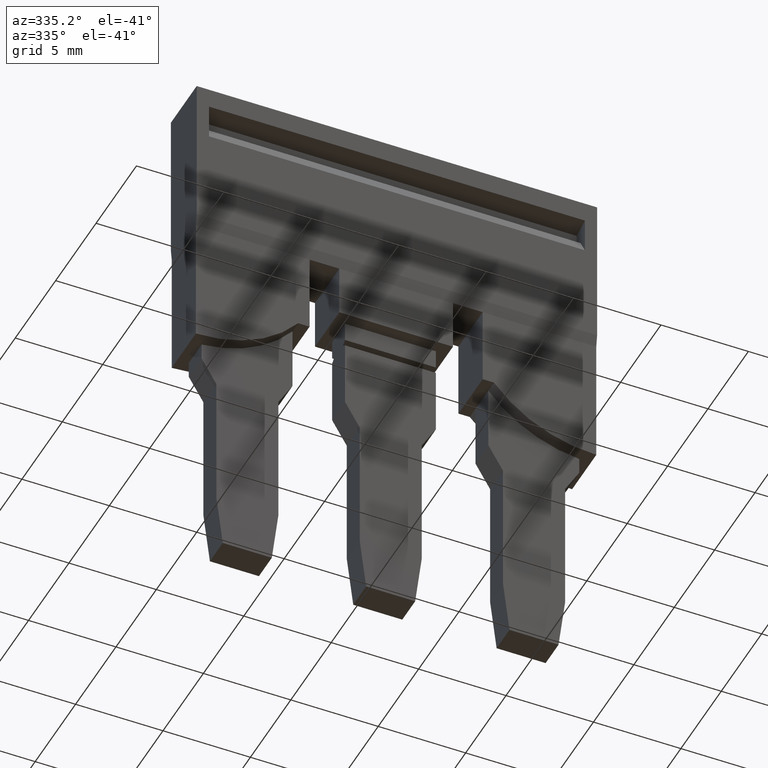
[diagram: clean part render]
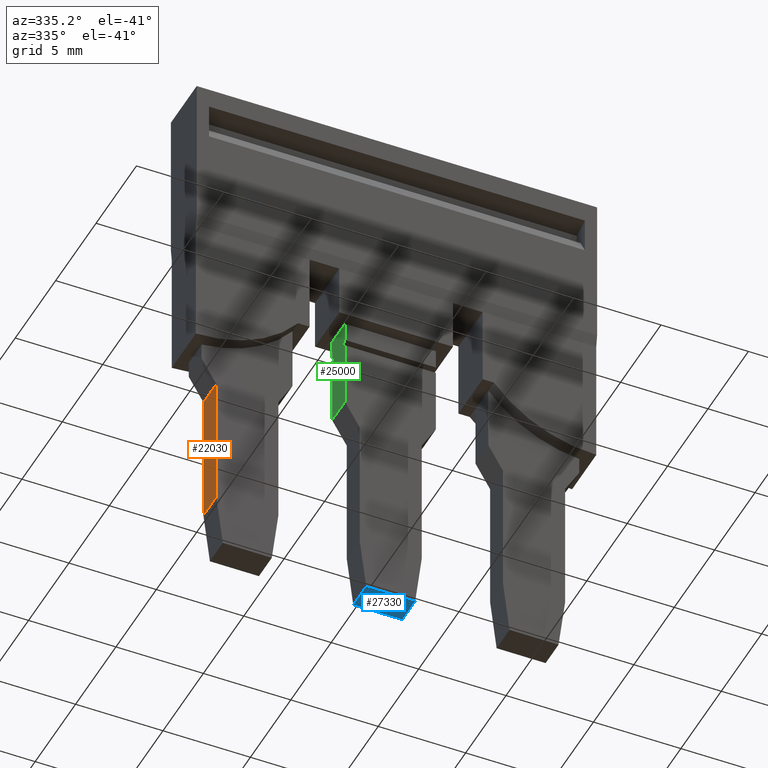
[diagram: same view with three faces highlighted in distinct colors, each labeled with its STEP entity id]
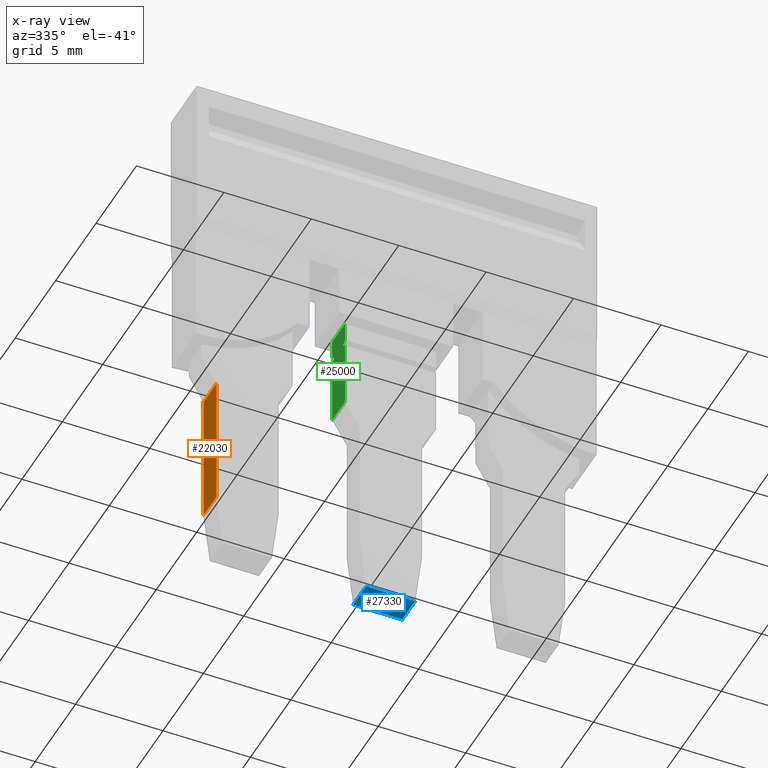
[diagram: x-ray of the same camera — body ghosted, the three highlighted faces saturated]
A machine part, auxiliary view with three faces highlighted in distinct colors.
The next image is the same camera in x-ray (body ghosted, the three faces saturated) — at least one of them is partly hidden behind the body in this view.
Their STEP definitions:

[orange] entity #22030 — the highlighted planar face has unit normal (-1, 0, 0).
#19140=CARTESIAN_POINT('',(3.38553886079776,-34.1523076176596,
65.2200000000056));
#19150=DIRECTION('',(3.46186431924323E-30,-1.,5.00325192570631E-15));
#19160=VECTOR('',#19150,1.);
#19170=LINE('',#19140,#19160);
#19180=CARTESIAN_POINT('',(3.38553886079776,-25.2938867696345,
65.2200000000055));
#19190=VERTEX_POINT('',#19180);
#19200=CARTESIAN_POINT('',(3.38553886079776,-33.0792532827543,
65.2200000000056));
#19210=VERTEX_POINT('',#19200);
#19220=EDGE_CURVE('',#19190,#19210,#19170,.T.);
#20610=CARTESIAN_POINT('',(4.98553886079777,-33.0792532827543,
65.2200000000056));
#20620=VERTEX_POINT('',#20610);
#20650=CARTESIAN_POINT('',(4.98553886079777,-34.1523076176596,
65.2200000000056));
#20660=DIRECTION('',(-3.97814054028055E-18,1.,-5.00325192570631E-15));
#20670=VECTOR('',#20660,1.);
#20680=LINE('',#20650,#20670);
#20690=CARTESIAN_POINT('',(4.98553886079777,-25.2938867696345,
65.2200000000055));
#20700=VERTEX_POINT('',#20690);
#20710=EDGE_CURVE('',#20620,#20700,#20680,.T.);
#21700=CARTESIAN_POINT('',(4.18553886078802,-33.0792532827543,
65.2200000000056));
#21710=DIRECTION('',(-1.,-5.56574854231291E-30,-4.89858719658941E-16));
#21720=VECTOR('',#21710,1.);
#21730=LINE('',#21700,#21720);
#21740=EDGE_CURVE('',#20620,#19210,#21730,.T.);
#21870=CARTESIAN_POINT('',(4.98553886079777,-30.5504377622608,
65.2200000000055));
#21880=DIRECTION('',(-4.89858719658941E-16,5.00325192570631E-15,1.));
#21890=DIRECTION('',(-2.97059256329698E-30,1.,-5.00325192570631E-15));
#21900=AXIS2_PLACEMENT_3D('',#21870,#21880,#21890);
#21910=PLANE('',#21900);
#21920=ORIENTED_EDGE('',*,*,#20710,.T.);
#21930=ORIENTED_EDGE('',*,*,#21740,.F.);
#21940=ORIENTED_EDGE('',*,*,#19220,.T.);
#21950=CARTESIAN_POINT('',(4.18553886078802,-25.2938867696345,
65.2200000000055));
#21960=DIRECTION('',(1.,2.12115047744991E-16,4.8985871965894E-16));
#21970=VECTOR('',#21960,1.);
#21980=LINE('',#21950,#21970);
#21990=EDGE_CURVE('',#19190,#20700,#21980,.T.);
#22000=ORIENTED_EDGE('',*,*,#21990,.F.);
#22010=EDGE_LOOP('',(#22000,#21940,#21930,#21920));
#22020=FACE_OUTER_BOUND('',#22010,.T.);
#22030=ADVANCED_FACE('',(#22020),#21910,.T.);

[blue] entity #27330 — the highlighted planar face has unit normal (-0, 0, -1).
#25760=CARTESIAN_POINT('',(3.38553886079778,-36.0978098182131,
53.8463850860994));
#25770=VERTEX_POINT('',#25760);
#25980=CARTESIAN_POINT('',(3.38553886079778,-36.0978098180791,
56.6493678612461));
#25990=VERTEX_POINT('',#25980);
#26020=CARTESIAN_POINT('',(3.38553886079777,-36.0978098179694,
58.9425038689779));
#26030=DIRECTION('',(3.67394039744206E-16,-4.78387892587514E-11,-1.));
#26040=VECTOR('',#26030,1.);
#26050=LINE('',#26020,#26040);
#26060=EDGE_CURVE('',#25990,#25770,#26050,.T.);
#26540=CARTESIAN_POINT('',(5.78553886079761,-36.0978098180791,
56.6493678612461));
#26550=DIRECTION('',(-1.,5.85403942339376E-27,-2.44929359828751E-16));
#26560=VECTOR('',#26550,1.);
#26570=LINE('',#26540,#26560);
#26580=CARTESIAN_POINT('',(4.98553886079777,-36.0978098180791,
56.6493678612461));
#26590=VERTEX_POINT('',#26580);
#26600=EDGE_CURVE('',#26590,#25990,#26570,.T.);
#26970=CARTESIAN_POINT('',(4.98553886079778,-36.0978098182131,
53.8463850860994));
#26980=VERTEX_POINT('',#26970);
#27010=CARTESIAN_POINT('',(4.98553886079779,-36.0978098189294,
38.8749840000005));
#27020=DIRECTION('',(-6.12258769597219E-16,4.78387892587514E-11,1.));
#27030=VECTOR('',#27020,1.);
#27040=LINE('',#27010,#27030);
#27050=EDGE_CURVE('',#26980,#26590,#27040,.T.);
#27170=CARTESIAN_POINT('',(4.18553886079777,-36.0978098181052,
56.1024483167275));
#27180=DIRECTION('',(-1.75711685809668E-26,-1.,4.78387892587514E-11));
#27190=DIRECTION('',(3.67394039744206E-16,-4.78387892587514E-11,-1.));
#27200=AXIS2_PLACEMENT_3D('',#27170,#27180,#27190);
#27210=PLANE('',#27200);
#27220=ORIENTED_EDGE('',*,*,#27050,.T.);
#27230=CARTESIAN_POINT('',(4.18553886078802,-36.0978098182131,
53.8463850860994));
#27240=DIRECTION('',(1.,4.51746127754996E-30,3.67394039744206E-16));
#27250=VECTOR('',#27240,1.);
#27260=LINE('',#27230,#27250);
#27270=EDGE_CURVE('',#25770,#26980,#27260,.T.);
#27280=ORIENTED_EDGE('',*,*,#27270,.T.);
#27290=ORIENTED_EDGE('',*,*,#26060,.T.);
#27300=ORIENTED_EDGE('',*,*,#26600,.T.);
#27310=EDGE_LOOP('',(#27300,#27290,#27280,#27220));
#27320=FACE_OUTER_BOUND('',#27310,.T.);
#27330=ADVANCED_FACE('',(#27320),#27210,.T.);

[green] entity #25000 — the highlighted planar face has unit normal (-1, 0, 0).
#1550=CARTESIAN_POINT('',(4.18553886078802,-23.8389640912953,
57.8599999999952));
#1560=DIRECTION('',(-1.,-4.5174612775547E-30,-3.67394039744206E-16));
#1570=VECTOR('',#1560,1.);
#1580=LINE('',#1550,#1570);
#1590=CARTESIAN_POINT('',(4.98553886079777,-23.8389640912953,
57.8599999999952));
#1600=VERTEX_POINT('',#1590);
#1610=CARTESIAN_POINT('',(3.38553886079777,-23.8389640912953,
57.8599999999952));
#1620=VERTEX_POINT('',#1610);
#1630=EDGE_CURVE('',#1600,#1620,#1580,.T.);
#7050=CARTESIAN_POINT('',(4.72943473146148,-19.7678098181012,
57.8599999999952));
#7060=VERTEX_POINT('',#7050);
#7230=CARTESIAN_POINT('',(4.98553886079777,-19.9538803596618,
57.8599999999952));
#7240=VERTEX_POINT('',#7230);
#7270=CARTESIAN_POINT('',(4.98553886078802,-19.9538803596547,
57.8599999999955));
#7280=DIRECTION('',(0.809016994374948,-0.587785252292473,
4.623656315736E-15));
#7290=VECTOR('',#7280,1.);
#7300=LINE('',#7270,#7290);
#7310=EDGE_CURVE('',#7060,#7240,#7300,.T.);
#11410=CARTESIAN_POINT('',(3.64164299013407,-19.7678098181012,
57.8599999999952));
#11420=VERTEX_POINT('',#11410);
#11470=CARTESIAN_POINT('',(4.18553886078802,-19.3726463372646,
57.8599999999952));
#11480=DIRECTION('',(0.809016994374948,0.587785252292473,
-4.00144469655011E-15));
#11490=VECTOR('',#11480,1.);
#11500=LINE('',#11470,#11490);
#11510=CARTESIAN_POINT('',(3.38553886079777,-19.9538803596618,
57.8599999999952));
#11520=VERTEX_POINT('',#11510);
#11530=EDGE_CURVE('',#11520,#11420,#11500,.T.);
#16640=CARTESIAN_POINT('',(4.98553886078802,-19.5817392765477,
57.8599999999955));
#16650=DIRECTION('',(-0.809016994374947,-0.587785252292473,
3.83491124285634E-15));
#16660=VECTOR('',#16650,1.);
#16670=LINE('',#16640,#16660);
#16680=CARTESIAN_POINT('',(4.98553886079778,-19.5817392765406,
57.8599999999955));
#16690=VERTEX_POINT('',#16680);
#16700=EDGE_CURVE('',#16690,#7060,#16670,.T.);
#17140=CARTESIAN_POINT('',(3.38553886079777,-19.5817392765406,
57.8599999999952));
#17150=VERTEX_POINT('',#17140);
#17180=CARTESIAN_POINT('',(4.18553886078802,-20.1629732989378,
57.8599999999952));
#17190=DIRECTION('',(-0.809016994374947,0.587785252292473,
-4.59590074012037E-15));
#17200=VECTOR('',#17190,1.);
#17210=LINE('',#17180,#17200);
#17220=EDGE_CURVE('',#11420,#17150,#17210,.T.);
#23970=CARTESIAN_POINT('',(5.78553886079761,-18.4678098181019,
57.8599999999952));
#23980=DIRECTION('',(-1.,-4.52848116820967E-48,-3.67394039744206E-16));
#23990=VECTOR('',#23980,1.);
#24000=LINE('',#23970,#23990);
#24010=CARTESIAN_POINT('',(4.98553886079778,-18.4678098181019,
57.8599999999955));
#24020=VERTEX_POINT('',#24010);
#24030=CARTESIAN_POINT('',(3.38553886079777,-18.4678098181019,
57.8599999999952));
#24040=VERTEX_POINT('',#24030);
#24050=EDGE_CURVE('',#24020,#24040,#24000,.T.);
#24440=CARTESIAN_POINT('',(4.98553886079778,-24.2417559473248,
57.8599999999956));
#24450=DIRECTION('',(1.29385036967145E-30,-1.,7.14674713859354E-15));
#24460=VECTOR('',#24450,1.);
#24470=LINE('',#24440,#24460);
#24480=EDGE_CURVE('',#24020,#16690,#24470,.T.);
#24680=CARTESIAN_POINT('',(4.18553886079777,-15.2678098181014,
57.8599999999952));
#24690=DIRECTION('',(-3.67394039744206E-16,7.28999943857991E-15,1.));
#24700=DIRECTION('',(1.83286600739257E-30,-1.,7.28999943857991E-15));
#24710=AXIS2_PLACEMENT_3D('',#24680,#24690,#24700);
#24720=PLANE('',#24710);
#24730=ORIENTED_EDGE('',*,*,#24480,.F.);
#24740=ORIENTED_EDGE('',*,*,#16700,.F.);
#24750=ORIENTED_EDGE('',*,*,#7310,.F.);
#24760=CARTESIAN_POINT('',(4.98553886079777,-34.1523076176596,
57.8599999999953));
#24770=DIRECTION('',(-3.97814054026855E-18,-1.,7.28999943857991E-15));
#24780=VECTOR('',#24770,1.);
#24790=LINE('',#24760,#24780);
#24800=EDGE_CURVE('',#7240,#1600,#24790,.T.);
#24810=ORIENTED_EDGE('',*,*,#24800,.F.);
#24820=ORIENTED_EDGE('',*,*,#1630,.F.);
#24830=CARTESIAN_POINT('',(3.38553886079777,-34.1523076176596,
57.8599999999953));
#24840=DIRECTION('',(3.8050182704451E-30,-1.,7.28999943857991E-15));
#24850=VECTOR('',#24840,1.);
#24860=LINE('',#24830,#24850);
#24870=EDGE_CURVE('',#11520,#1620,#24860,.T.);
#24880=ORIENTED_EDGE('',*,*,#24870,.T.);
#24890=ORIENTED_EDGE('',*,*,#11530,.F.);
#24900=ORIENTED_EDGE('',*,*,#17220,.F.);
#24910=CARTESIAN_POINT('',(3.38553886079777,-34.1523076176596,
57.8599999999953));
#24920=DIRECTION('',(1.83286600739257E-30,-1.,7.28999943857991E-15));
#24930=VECTOR('',#24920,1.);
#24940=LINE('',#24910,#24930);
#24950=EDGE_CURVE('',#24040,#17150,#24940,.T.);
#24960=ORIENTED_EDGE('',*,*,#24950,.T.);
#24970=ORIENTED_EDGE('',*,*,#24050,.T.);
#24980=EDGE_LOOP('',(#24970,#24960,#24900,#24890,#24880,#24820,#24810,
#24750,#24740,#24730));
#24990=FACE_OUTER_BOUND('',#24980,.T.);
#25000=ADVANCED_FACE('',(#24990),#24720,.T.);